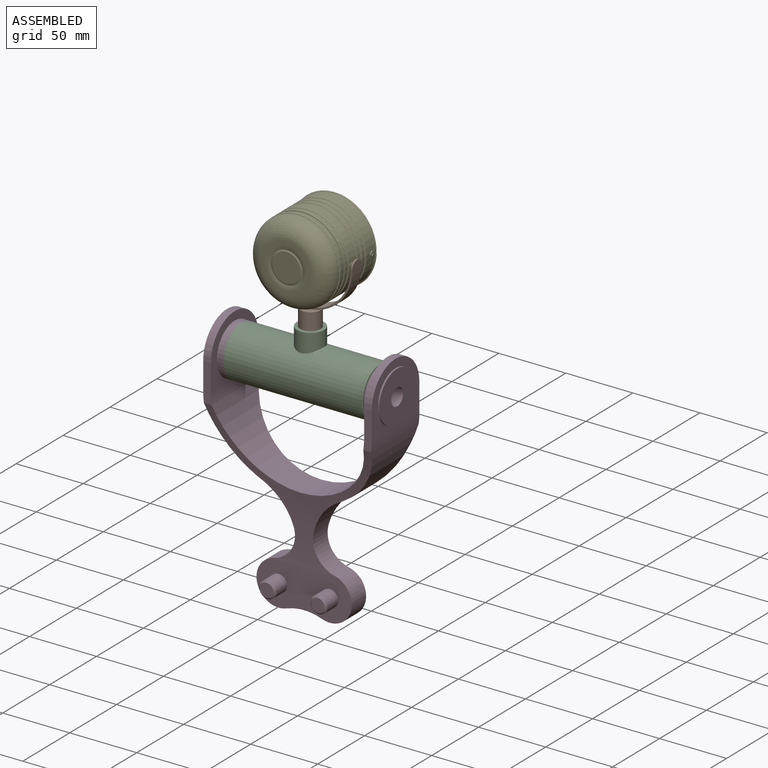
[diagram: assembled view]
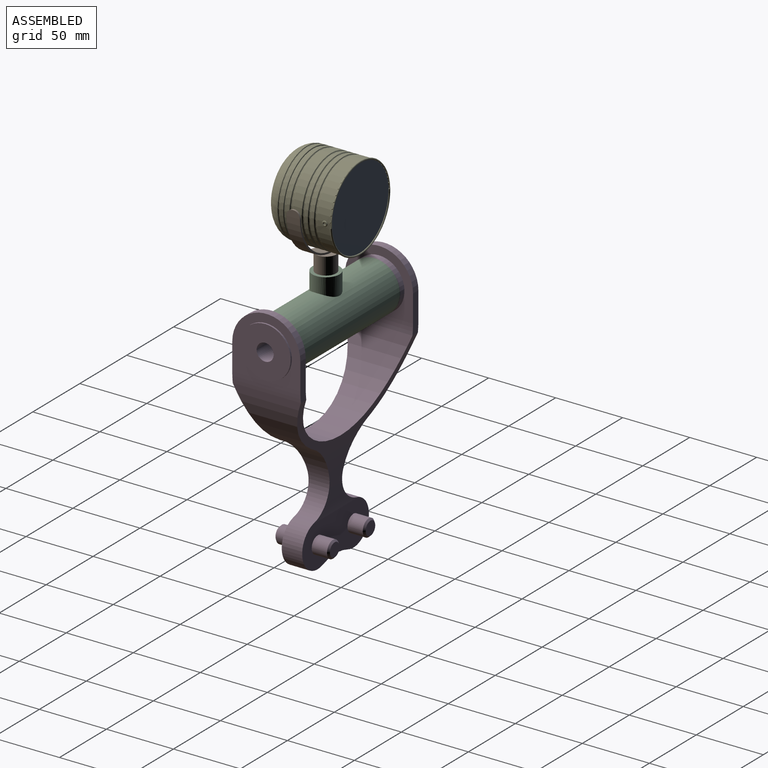
[diagram: assembled view, second angle]
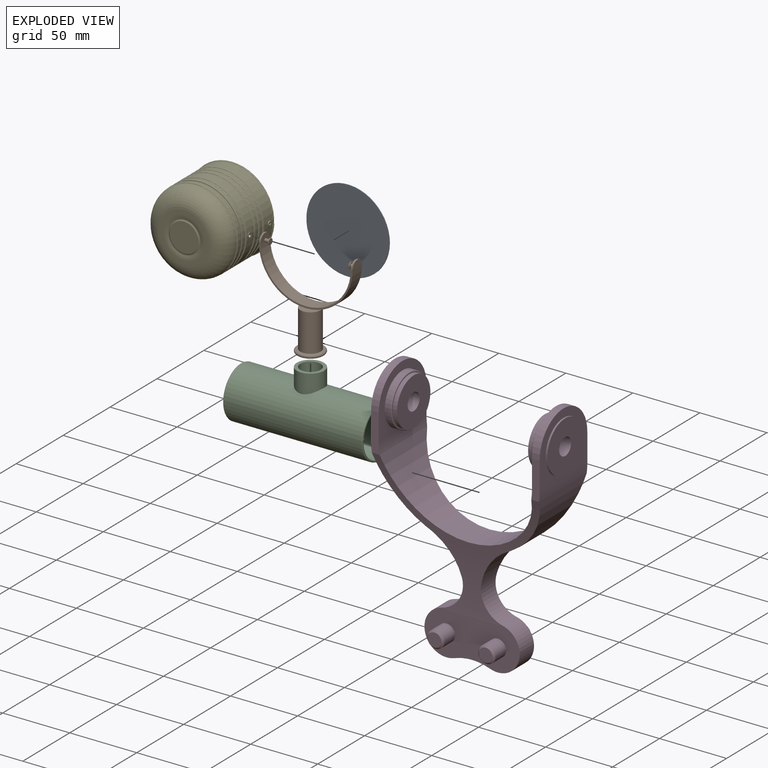
[diagram: exploded view]
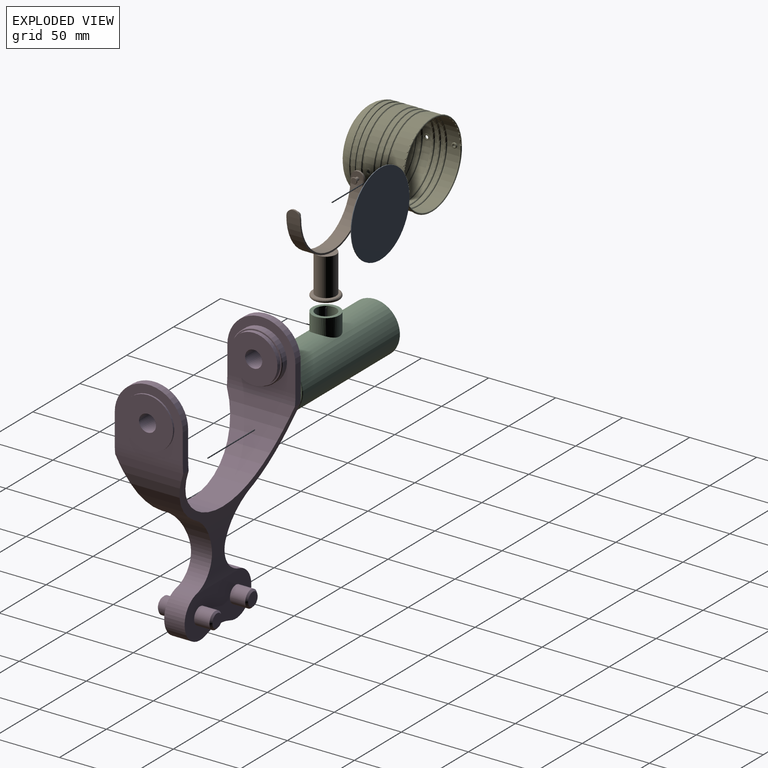
[diagram: exploded view, second angle]
ASSEMBLY  parts=5 mates=4
PART A: 3 faces, bbox 62x0.5x62 mm
  f0: cylinder r=30.99mm len=61.98mm, axis (0,1,0), area 98.9mm2, adj f1,f2
  f1: plane 61.98x61.98mm, normal (0,-1,0), area 3016.7mm2, adj f0
  f2: plane 61.98x61.98mm, normal (0,1,0), area 3016.7mm2, adj f0
PART B: 30 faces, bbox 69.9x22x71.8 mm
  f0: cylinder r=1.27mm len=3.18mm, axis (-1,0,0), area 25.3mm2, adj f1,f2,f27
  f1: cylinder r=33.65mm len=67.31mm, axis (0,1,0), area 1069.1mm2, adj f0,f2,f3,f14,f15,f19
  f2: plane 10.16x5.08mm, normal (1,0,0), area 38mm2, adj f0,f1,f4
  f3: plane 10.16x5.08mm, normal (-1,0,0), area 38mm2, adj f1,f16,f19
  f4: cylinder r=5.08mm len=10.16mm, axis (-1,0,0), area 20.3mm2, adj f2,f14,f15,f18
  f5: torus R=1.27mm, axis (0,0,1), area 0.4mm2, adj f12,f13
  f6: torus R=1.27mm, axis (0,0,1), area 0.4mm2, adj f12,f13
  f7: cylinder r=7.62mm len=27.94mm, axis (0,0,-1), area 1337.7mm2, adj f8,f9
  f8: plane 15.24x15.24mm, normal (0,0,1), area 162.1mm2, adj f7,f12
  f9: plane 17.78x17.78mm, normal (0,0,1), area 65.9mm2, adj f7,f11
  f10: plane 17.78x17.78mm, normal (0,0,-1), area 248.3mm2, adj f11
  f11: torus R=8.89mm, axis (0,0,1), area 243.1mm2, adj f9,f10
  f12: cylinder r=2.54mm len=5.08mm, axis (0,0,-1), area 20.3mm2, adj f5,f6,f8
  f13: cylinder r=34.92mm len=69.85mm, axis (0,1,0), area 1094.5mm2, adj f5,f6,f14,f15,f17,f18
  f14: plane 69.85x34.93mm, normal (0,-1,0), area 136.8mm2, adj f1,f4,f13,f16
  f15: plane 69.85x34.93mm, normal (0,1,0), area 136.8mm2, adj f1,f4,f13,f16
  f16: cylinder r=5.08mm len=10.16mm, axis (-1,0,0), area 20.3mm2, adj f3,f14,f15,f17
  f17: plane 10.16x5.08mm, normal (1,0,0), area 40.5mm2, adj f13,f16
  f18: plane 10.16x5.08mm, normal (-1,0,0), area 40.5mm2, adj f4,f13
  f19: cylinder r=1.27mm len=3.18mm, axis (-1,0,0), area 25.3mm2, adj f1,f3,f22
  f20: cylinder r=2.29mm len=4.57mm, axis (1,0,0), area 3.6mm2, adj f23,f24
  f21: plane 4.06x4.06mm, normal (-1,0,0), area 13mm2, adj f24
  f22: plane 4.06x4.06mm, normal (1,0,0), area 7.9mm2, adj f19,f23
  f23: torus R=2.03mm, axis (-1,0,0), area 5.5mm2, adj f20,f22
  f24: torus R=2.03mm, axis (-1,0,0), area 5.5mm2, adj f20,f21
  f25: cylinder r=2.29mm len=4.57mm, axis (-1,0,0), area 3.6mm2, adj f28,f29
  f26: plane 4.06x4.06mm, normal (1,0,0), area 13mm2, adj f29
  f27: plane 4.06x4.06mm, normal (-1,0,0), area 7.9mm2, adj f0,f28
  f28: torus R=2.03mm, axis (1,0,0), area 5.5mm2, adj f25,f27
  f29: torus R=2.03mm, axis (1,0,0), area 5.5mm2, adj f25,f26
PART C: 11 faces, bbox 104.1x41.2x51.1 mm
  f0: cylinder r=17.78mm len=104.14mm, axis (-1,0,0), area 11295.8mm2, adj f2,f3,f9
  f1: cylinder r=19.05mm len=102.87mm, axis (-1,0,0), area 11975.4mm2, adj f4,f5,f8
  f2: plane 36.83x36.83mm, normal (1,0,0), area 72.2mm2, adj f0,f5
  f3: plane 36.83x36.83mm, normal (-1,0,0), area 72.2mm2, adj f0,f4
  f4: torus R=18.41mm, axis (1,0,0), area 117.9mm2, adj f1,f3
  f5: torus R=18.41mm, axis (1,0,0), area 117.9mm2, adj f1,f2
  f6: cylinder r=7.62mm len=17.78mm, axis (0,0,-1), area 851.3mm2, adj f7,f10
  f7: plane 20.32x20.32mm, normal (0,0,1), area 141.9mm2, adj f6,f8
  f8: cylinder r=10.16mm len=20.32mm, axis (0,0,-1), area 821.3mm2, adj f1,f7
  f9: cylinder r=10.16mm len=20.32mm, axis (0,0,-1), area 225mm2, adj f0,f10
  f10: plane 20.32x20.32mm, normal (0,0,-1), area 141.9mm2, adj f6,f9
PART D: 54 faces, bbox 128.3x50.8x186.9 mm
  f0: cylinder r=19.05mm len=38.1mm, axis (-1,0,0), area 532mm2, adj f4,f53
  f1: plane 35.56x35.56mm, normal (1,0,0), area 866.5mm2, adj f3,f50
  f2: plane 35.56x35.56mm, normal (-1,0,0), area 866.5mm2, adj f47,f48
  f3: cylinder r=6.35mm len=15.24mm, axis (1,0,0), area 608mm2, adj f1,f46
  f4: plane 50.8x45.72mm, normal (1,0,0), area 905.6mm2, adj f0,f10,f19,f21,f41
  f5: plane 50.8x45.72mm, normal (-1,0,0), area 905.6mm2, adj f11,f19,f21,f41,f45
  f6: plane 50.8x45.72mm, normal (1,0,0), area 905.6mm2, adj f18,f20,f22,f38,f44
  f7: plane 50.8x45.72mm, normal (-1,0,0), area 905.6mm2, adj f10,f20,f22,f38,f42
  f8: cylinder r=16.51mm len=32.63mm, axis (0,1,0), area 825.2mm2, adj f15,f23,f24,f25,f39,f40
  f9: cylinder r=16.51mm len=32.63mm, axis (0,1,0), area 825.2mm2, adj f14,f23,f24,f25,f39,f40
  f10: cylinder r=57.15mm len=114.3mm, axis (0,1,0), area 5936.4mm2, adj f4,f7,f19,f20,f21,f22,f39,f40
  f11: cylinder r=62.87mm len=54.2mm, axis (0,1,0), area 2378.8mm2, adj f5,f12,f19,f21,f39,f40
  f12: cylinder r=25.4mm len=23.89mm, axis (0,1,0), area 39mm2, adj f11,f13,f39,f40
  f13: cylinder r=44.45mm len=28.69mm, axis (0,1,0), area 752.3mm2, adj f12,f14,f39,f40
  f14: cylinder r=20.32mm len=24.87mm, axis (0,1,0), area 497.8mm2, adj f9,f13,f39,f40
  f15: cylinder r=20.32mm len=24.87mm, axis (0,1,0), area 497.8mm2, adj f8,f16,f39,f40
  f16: cylinder r=44.45mm len=28.69mm, axis (0,1,0), area 752.3mm2, adj f15,f17,f39,f40
  f17: cylinder r=25.4mm len=23.89mm, axis (0,1,0), area 39mm2, adj f16,f18,f39,f40
  f18: cylinder r=62.87mm len=54.2mm, axis (0,1,0), area 2378.8mm2, adj f6,f17,f20,f22,f39,f40
  f19: plane 28.15x6.25mm, normal (0,-1,0), area 161mm2, adj f4,f5,f10,f11,f39,f41
  f20: plane 28.15x6.25mm, normal (0,-1,0), area 161mm2, adj f6,f7,f10,f18,f38,f39
  f21: plane 28.15x6.25mm, normal (0,1,0), area 161mm2, adj f4,f5,f10,f11,f40,f41
  f22: plane 28.15x6.25mm, normal (0,1,0), area 161mm2, adj f6,f7,f10,f18,f38,f40
  f23: cylinder r=38.1mm len=26.58mm, axis (0,1,0), area 413.8mm2, adj f8,f9,f24,f25
  f24: plane 71.12x32.15mm, normal (0,-1,0), area 1747.7mm2, adj f8,f9,f23,f28,f32,f39
  f25: plane 71.12x32.15mm, normal (0,1,0), area 1747.7mm2, adj f8,f9,f23,f27,f31,f40
  f26: plane 10.16x10.16mm, normal (0,1,0), area 81.1mm2, adj f34
  f27: cylinder r=6.35mm len=12.7mm, axis (0,1,0), area 456mm2, adj f25,f34
  f28: cylinder r=6.35mm len=12.7mm, axis (0,1,0), area 456mm2, adj f24,f35
  f29: plane 10.16x10.16mm, normal (0,-1,0), area 81.1mm2, adj f35
  f30: plane 10.16x10.16mm, normal (0,1,0), area 81.1mm2, adj f36
  f31: cylinder r=6.35mm len=12.7mm, axis (0,1,0), area 456mm2, adj f25,f36
  f32: cylinder r=6.35mm len=12.7mm, axis (0,1,0), area 456mm2, adj f24,f37
  f33: plane 10.16x10.16mm, normal (0,-1,0), area 81.1mm2, adj f37
  f34: cone r=6.35mm half-angle=45deg, axis (0,-1,0), area 64.5mm2, adj f26,f27
  f35: cone r=5.08mm half-angle=45deg, axis (0,1,0), area 64.5mm2, adj f28,f29
  f36: cone r=6.35mm half-angle=45deg, axis (0,-1,0), area 64.5mm2, adj f30,f31
  f37: cone r=5.08mm half-angle=45deg, axis (0,1,0), area 64.5mm2, adj f32,f33
  f38: cylinder r=25.4mm len=50.8mm, axis (1,0,0), area 456mm2, adj f6,f7,f20,f22
  f39: cylinder r=254mm len=124.75mm, axis (1,0,0), area 2102.9mm2, adj f8,f9,f10,f11,f12,f13,f14,f15
  f40: cylinder r=254mm len=124.75mm, axis (1,0,0), area 2102.3mm2, adj f8,f9,f10,f11,f12,f13,f14,f15
  f41: cylinder r=25.4mm len=50.8mm, axis (1,0,0), area 456mm2, adj f4,f5,f19,f21
  f42: cylinder r=19.05mm len=38.1mm, axis (-1,0,0), area 532mm2, adj f7,f52
  f43: plane 38.1x38.1mm, normal (1,0,0), area 1013.4mm2, adj f44,f47
  f44: cylinder r=19.05mm len=38.1mm, axis (-1,0,0), area 152mm2, adj f6,f43
  f45: cylinder r=19.05mm len=38.1mm, axis (-1,0,0), area 152mm2, adj f5,f46
  f46: plane 38.1x38.1mm, normal (-1,0,0), area 1013.4mm2, adj f3,f45
  f47: cylinder r=6.35mm len=15.24mm, axis (1,0,0), area 608mm2, adj f2,f43
  f48: cylinder r=17.78mm len=35.56mm, axis (1,0,0), area 354.7mm2, adj f2,f49
  f49: plane 36.83x36.83mm, normal (-1,0,0), area 72.2mm2, adj f48,f52
  f50: cylinder r=17.78mm len=35.56mm, axis (1,0,0), area 354.7mm2, adj f1,f51
  f51: plane 36.83x36.83mm, normal (1,0,0), area 72.2mm2, adj f50,f53
  f52: torus R=18.41mm, axis (1,0,0), area 117.9mm2, adj f42,f49
  f53: torus R=18.41mm, axis (1,0,0), area 117.9mm2, adj f0,f51
PART E: 121 faces, bbox 68.6x51.6x68.6 mm
  f0: cylinder r=31.12mm len=62.23mm, axis (0,1,0), area 1815.7mm2, adj f40,f86,f88,f106
  f1: cylinder r=30.86mm len=61.72mm, axis (0,1,0), area 1804mm2, adj f2,f80,f83,f106
  f2: cylinder r=1.91mm len=3.81mm, axis (-1,0,0), area 7.2mm2, adj f1,f101
  f3: torus R=18.41mm, axis (0,-1,0), area 2973.3mm2, adj f4,f9
  f4: plane 36.83x36.83mm, normal (0,1,0), area 298.8mm2, adj f3,f7
  f5: plane 23.78x23.78mm, normal (0,1,0), area 5.7mm2, adj f107,f108
  f6: plane 21.59x21.59mm, normal (0,1,0), area 366.1mm2, adj f108
  f7: torus R=15.62mm, axis (0,-1,0), area 300.3mm2, adj f4,f107
  f8: cylinder r=30.35mm len=60.71mm, axis (0,1,0), area 242.2mm2, adj f22,f24
  f9: plane 61.98x61.98mm, normal (0,-1,0), area 49.6mm2, adj f3,f24
  f10: cylinder r=31.12mm len=62.23mm, axis (0,1,0), area 347.6mm2, adj f23,f26
  f11: plane 61.47x61.47mm, normal (0,1,0), area 73.1mm2, adj f12,f25
  f12: cylinder r=30.35mm len=60.71mm, axis (0,1,0), area 387.5mm2, adj f11,f13
  f13: plane 61.47x61.47mm, normal (0,-1,0), area 73.1mm2, adj f12,f26
  f14: cylinder r=31.12mm len=62.23mm, axis (0,1,0), area 347.6mm2, adj f25,f29
  f15: cylinder r=30.35mm len=60.71mm, axis (0,1,0), area 242.2mm2, adj f27,f30
  f16: cylinder r=31.12mm len=62.23mm, axis (0,1,0), area 1208.7mm2, adj f28,f33,f112,f118
  f17: cylinder r=30.35mm len=60.71mm, axis (0,1,0), area 242.2mm2, adj f31,f34
  f18: cylinder r=31.12mm len=62.23mm, axis (0,1,0), area 347.6mm2, adj f32,f37
  f19: cylinder r=30.35mm len=60.71mm, axis (0,1,0), area 242.2mm2, adj f35,f38
  f20: cylinder r=31.12mm len=62.23mm, axis (0,1,0), area 347.6mm2, adj f36,f41
  f21: cylinder r=30.35mm len=60.71mm, axis (0,1,0), area 242.2mm2, adj f39,f42
  f22: torus R=30.73mm, axis (0,-1,0), area 114.7mm2, adj f8,f23
  f23: torus R=30.73mm, axis (0,-1,0), area 116.5mm2, adj f10,f22
  f24: torus R=30.73mm, axis (0,-1,0), area 114.7mm2, adj f8,f9
  f25: torus R=30.73mm, axis (0,-1,0), area 116.5mm2, adj f11,f14
  f26: torus R=30.73mm, axis (0,-1,0), area 116.5mm2, adj f10,f13
  f27: torus R=30.73mm, axis (0,-1,0), area 114.7mm2, adj f15,f28
  f28: torus R=30.73mm, axis (0,-1,0), area 116.5mm2, adj f16,f27
  f29: torus R=30.73mm, axis (0,-1,0), area 116.5mm2, adj f14,f30
  f30: torus R=30.73mm, axis (0,-1,0), area 114.7mm2, adj f15,f29
  f31: torus R=30.73mm, axis (0,-1,0), area 114.7mm2, adj f17,f32
  f32: torus R=30.73mm, axis (0,-1,0), area 116.5mm2, adj f18,f31
  f33: torus R=30.73mm, axis (0,-1,0), area 116.5mm2, adj f16,f34
  f34: torus R=30.73mm, axis (0,-1,0), area 114.7mm2, adj f17,f33
  f35: torus R=30.73mm, axis (0,-1,0), area 114.7mm2, adj f19,f36
  f36: torus R=30.73mm, axis (0,-1,0), area 116.5mm2, adj f20,f35
  f37: torus R=30.73mm, axis (0,-1,0), area 116.5mm2, adj f18,f38
  f38: torus R=30.73mm, axis (0,-1,0), area 114.7mm2, adj f19,f37
  f39: torus R=30.73mm, axis (0,-1,0), area 114.7mm2, adj f21,f40
  f40: torus R=30.73mm, axis (0,-1,0), area 116.5mm2, adj f0,f39
  f41: torus R=30.73mm, axis (0,-1,0), area 116.5mm2, adj f20,f42
  f42: torus R=30.73mm, axis (0,-1,0), area 114.7mm2, adj f21,f41
  f43: torus R=18.41mm, axis (0,-1,0), area 2840.5mm2, adj f44,f64
  f44: plane 36.83x36.83mm, normal (0,-1,0), area 298.8mm2, adj f43,f48
  f45: cylinder r=10.54mm len=21.08mm, axis (0,1,0), area 33.6mm2, adj f46,f47
  f46: plane 24.2x24.2mm, normal (0,-1,0), area 111mm2, adj f45,f48
  f47: plane 21.08x21.08mm, normal (0,-1,0), area 349.1mm2, adj f45
  f48: torus R=15.62mm, axis (0,-1,0), area 310.5mm2, adj f44,f46
  f49: cylinder r=30.1mm len=60.2mm, axis (0,1,0), area 240.2mm2, adj f62,f64
  f50: cylinder r=30.86mm len=61.72mm, axis (0,1,0), area 344.8mm2, adj f63,f66
  f51: plane 61.47x61.47mm, normal (0,-1,0), area 121.4mm2, adj f52,f65
  f52: cylinder r=30.1mm len=60.2mm, axis (0,1,0), area 480.4mm2, adj f51,f53
  f53: plane 61.47x61.47mm, normal (0,1,0), area 121.4mm2, adj f52,f66
  f54: cylinder r=30.86mm len=61.72mm, axis (0,1,0), area 344.8mm2, adj f65,f69
  f55: cylinder r=30.1mm len=60.2mm, axis (0,1,0), area 240.2mm2, adj f67,f70
  f56: cylinder r=30.86mm len=61.72mm, axis (0,1,0), area 1198.4mm2, adj f68,f73,f111,f117
  f57: cylinder r=30.1mm len=60.2mm, axis (0,1,0), area 240.2mm2, adj f71,f74
  f58: cylinder r=30.86mm len=61.72mm, axis (0,1,0), area 344.8mm2, adj f72,f77
  f59: cylinder r=30.1mm len=60.2mm, axis (0,1,0), area 240.2mm2, adj f75,f78
  f60: cylinder r=30.86mm len=61.72mm, axis (0,1,0), area 344.8mm2, adj f76,f81
  f61: cylinder r=30.1mm len=60.2mm, axis (0,1,0), area 240.2mm2, adj f79,f82
  f62: torus R=30.73mm, axis (0,-1,0), area 190.1mm2, adj f49,f63
  f63: torus R=30.73mm, axis (0,-1,0), area 38.6mm2, adj f50,f62
  f64: torus R=30.73mm, axis (0,-1,0), area 182.4mm2, adj f43,f49
  f65: torus R=30.73mm, axis (0,-1,0), area 38.6mm2, adj f51,f54
  f66: torus R=30.73mm, axis (0,-1,0), area 38.6mm2, adj f50,f53
  f67: torus R=30.73mm, axis (0,-1,0), area 190.1mm2, adj f55,f68
  f68: torus R=30.73mm, axis (0,-1,0), area 38.6mm2, adj f56,f67
  f69: torus R=30.73mm, axis (0,-1,0), area 38.6mm2, adj f54,f70
  f70: torus R=30.73mm, axis (0,-1,0), area 190.1mm2, adj f55,f69
  f71: torus R=30.73mm, axis (0,-1,0), area 190.1mm2, adj f57,f72
  f72: torus R=30.73mm, axis (0,-1,0), area 38.6mm2, adj f58,f71
  f73: torus R=30.73mm, axis (0,-1,0), area 38.6mm2, adj f56,f74
  f74: torus R=30.73mm, axis (0,-1,0), area 190.1mm2, adj f57,f73
  f75: torus R=30.73mm, axis (0,-1,0), area 190.1mm2, adj f59,f76
  f76: torus R=30.73mm, axis (0,-1,0), area 38.6mm2, adj f60,f75
  f77: torus R=30.73mm, axis (0,-1,0), area 38.6mm2, adj f58,f78
  f78: torus R=30.73mm, axis (0,-1,0), area 190.1mm2, adj f59,f77
  f79: torus R=30.73mm, axis (0,-1,0), area 190.1mm2, adj f61,f80
  f80: torus R=30.73mm, axis (0,-1,0), area 38.6mm2, adj f1,f79
  f81: torus R=30.73mm, axis (0,-1,0), area 38.6mm2, adj f60,f82
  f82: torus R=30.73mm, axis (0,-1,0), area 190.1mm2, adj f61,f81
  f83: cylinder r=1.91mm len=3.81mm, axis (-1,0,0), area 7.2mm2, adj f1,f99
  f84: cylinder r=0.76mm len=1.52mm, axis (-1,0,0), area 1.3mm2, adj f90,f102
  f85: plane 3.05x3.05mm, normal (-1,0,0), area 3.2mm2, adj f102,f103
  f86: cylinder r=1.91mm len=3.81mm, axis (-1,0,0), area 3.4mm2, adj f0,f103
  f87: cylinder r=0.76mm len=1.52mm, axis (-1,0,0), area 1.3mm2, adj f91,f104
  f88: cylinder r=1.91mm len=3.81mm, axis (-1,0,0), area 3.4mm2, adj f0,f105
  f89: plane 3.05x3.05mm, normal (1,0,0), area 3.2mm2, adj f104,f105
  f90: cylinder r=31.12mm len=1.52mm, axis (0,1,0), area 1.8mm2, adj f84
  f91: cylinder r=31.12mm len=1.52mm, axis (0,1,0), area 1.8mm2, adj f87
  f92: plane 3.05x3.05mm, normal (-1,0,0), area 3.2mm2, adj f98,f99
  f93: plane 3.05x3.05mm, normal (1,0,0), area 3.2mm2, adj f100,f101
  f94: cylinder r=30.86mm len=1.52mm, axis (0,1,0), area 1.8mm2, adj f95
  f95: cylinder r=0.76mm len=1.52mm, axis (-1,0,0), area 3mm2, adj f94,f98
  f96: cylinder r=0.76mm len=1.52mm, axis (-1,0,0), area 3mm2, adj f97,f100
  f97: cylinder r=30.86mm len=1.52mm, axis (0,1,0), area 1.8mm2, adj f96
  f98: torus R=1.14mm, axis (1,0,0), area 3.4mm2, adj f92,f95
  f99: torus R=1.52mm, axis (1,0,0), area 6.6mm2, adj f83,f92
  f100: torus R=1.14mm, axis (1,0,0), area 3.4mm2, adj f93,f96
  f101: torus R=1.52mm, axis (1,0,0), area 6.6mm2, adj f2,f93
  f102: torus R=1.14mm, axis (1,0,0), area 3.4mm2, adj f84,f85
  f103: torus R=1.52mm, axis (1,0,0), area 6.6mm2, adj f85,f86
  f104: torus R=1.14mm, axis (1,0,0), area 3.4mm2, adj f87,f89
  f105: torus R=1.52mm, axis (1,0,0), area 6.6mm2, adj f88,f89
  f106: torus R=31.03mm, axis (0,-1,0), area 728mm2, adj f0,f1
  f107: torus R=11.89mm, axis (0,-1,0), area 26mm2, adj f5,f7
  f108: torus R=11.81mm, axis (0,1,0), area 83.3mm2, adj f5,f6
  f109: torus R=1.4mm, axis (-1,0,0), area 1.6mm2, adj f110,f114
  f110: plane 4.57x4.57mm, normal (-1,0,0), area 10.3mm2, adj f109,f111
  f111: cylinder r=2.29mm len=4.57mm, axis (-1,0,0), area 4.9mm2, adj f56,f110
  f112: cylinder r=2.29mm len=4.57mm, axis (-1,0,0), area 6.1mm2, adj f16,f113
  f113: plane 4.57x4.57mm, normal (1,0,0), area 11.4mm2, adj f112,f114
  f114: cylinder r=1.27mm len=2.54mm, axis (1,0,0), area 7.1mm2, adj f109,f113
  f115: torus R=1.4mm, axis (1,0,0), area 1.6mm2, adj f116,f120
  f116: plane 4.57x4.57mm, normal (1,0,0), area 10.3mm2, adj f115,f117
  f117: cylinder r=2.29mm len=4.57mm, axis (1,0,0), area 4.9mm2, adj f56,f116
  f118: cylinder r=2.29mm len=4.57mm, axis (1,0,0), area 6.1mm2, adj f16,f119
  f119: plane 4.57x4.57mm, normal (-1,0,0), area 11.4mm2, adj f118,f120
  f120: cylinder r=1.27mm len=2.54mm, axis (1,0,0), area 7.1mm2, adj f115,f119
PLACE A t=(24.69,120.52,130.04)mm
PLACE B t=(24.82,71.1,65.9)mm
PLACE C t=(24.82,71.1,50.66)mm
PLACE D t=(25.45,71.1,90.59)mm
PLACE E rot(axis=(1,0,0),180deg) t=(24.69,71.1,130.04)mm
MATE revolute E.f109 <-> B.f0  axis (-1,0,0) through (55.3,71.1,130.04)mm
MATE revolute C.f6 <-> B.f5  axis (0,0,-1) through (24.82,71.1,63.36)mm
MATE revolute D.f0 <-> C.f0  axis (1,0,0) through (-26.62,71.1,50.66)mm
MATE fastened E.f0 <-> A.f0  axis (0,1,0) through (24.69,95.89,130.04)mm
